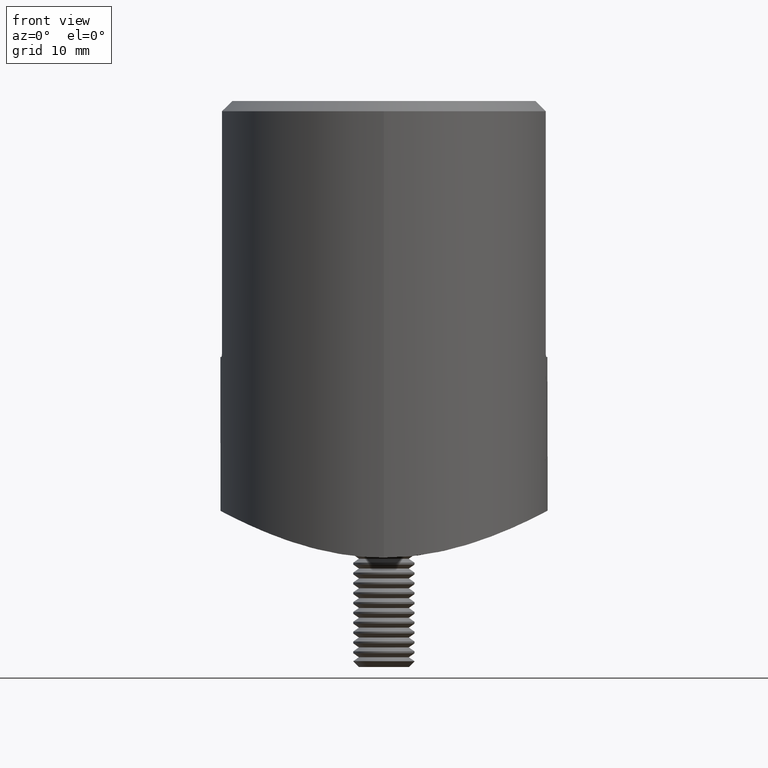
[diagram: clean part render]
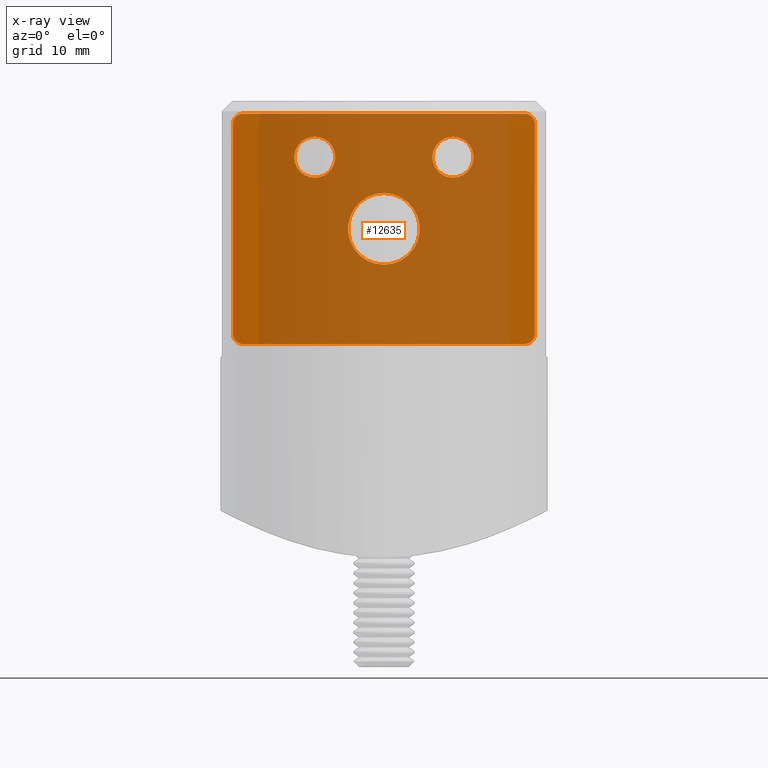
[diagram: x-ray — body ghosted, one internal face saturated and labeled with its STEP entity id]
A machine part, front view, then the same camera in x-ray: the body is ghosted and one INTERNAL B-rep face — a face not visible from any outside direction — is saturated and labeled: STEP entity #12635.
In plain terms, the highlighted planar face has unit normal (0, 1, 0).
Its self-contained STEP definition (entity closure, byte-faithful):
#58 = EDGE_CURVE ( 'NONE', #9213, #4261, #6994, .T. ) ;
#97 = AXIS2_PLACEMENT_3D ( 'NONE', #13115, #17718, #2362 ) ;
#173 = EDGE_CURVE ( 'NONE', #17363, #2555, #2664, .T. ) ;
#462 = CARTESIAN_POINT ( 'NONE',  ( -14.75000000000000355, 1.000000000000000000, -11.24999999999999112 ) ) ;
#502 = VECTOR ( 'NONE', #5008, 1000.000000000000000 ) ;
#568 = CARTESIAN_POINT ( 'NONE',  ( -6.749999999999997335, 1.000000000000000000, 6.999999999999997335 ) ) ;
#649 = DIRECTION ( 'NONE',  ( 0.000000000000000000, 0.000000000000000000, -1.000000000000000000 ) ) ;
#1084 = ORIENTED_EDGE ( 'NONE', *, *, #10057, .T. ) ;
#1249 = CARTESIAN_POINT ( 'NONE',  ( -14.75000000000000000, 1.000000000000000000, 11.24999999999999822 ) ) ;
#1281 = CARTESIAN_POINT ( 'NONE',  ( 13.74999999999999467, 1.000000000000000000, -11.25000000000000178 ) ) ;
#1301 = DIRECTION ( 'NONE',  ( 0.000000000000000000, 0.000000000000000000, -1.000000000000000000 ) ) ;
#1364 = EDGE_CURVE ( 'NONE', #12196, #12196, #3372, .T. ) ;
#1381 = DIRECTION ( 'NONE',  ( 1.000000000000000000, 0.000000000000000000, 0.000000000000000000 ) ) ;
#1461 = VECTOR ( 'NONE', #1381, 1000.000000000000000 ) ;
#1878 = ORIENTED_EDGE ( 'NONE', *, *, #3531, .T. ) ;
#1926 = LINE ( 'NONE', #1968, #13725 ) ;
#1968 = CARTESIAN_POINT ( 'NONE',  ( 14.75000000000000000, 1.000000000000000000, 11.24999999999999822 ) ) ;
#2011 = ORIENTED_EDGE ( 'NONE', *, *, #14354, .T. ) ;
#2150 = CARTESIAN_POINT ( 'NONE',  ( 6.750000000000002665, 1.000000000000000000, 4.999999999999995559 ) ) ;
#2362 = DIRECTION ( 'NONE',  ( 0.000000000000000000, 0.000000000000000000, -1.000000000000000000 ) ) ;
#2555 = VERTEX_POINT ( 'NONE', #1281 ) ;
#2664 = CIRCLE ( 'NONE', #6548, 1.000000000000000888 ) ;
#2741 = PLANE ( 'NONE',  #16877 ) ;
#2873 = CARTESIAN_POINT ( 'NONE',  ( 0.000000000000000000, 1.000000000000000000, 0.000000000000000000 ) ) ;
#2920 = AXIS2_PLACEMENT_3D ( 'NONE', #5612, #11599, #5544 ) ;
#2968 = EDGE_CURVE ( 'NONE', #5210, #5210, #5253, .T. ) ;
#3330 = DIRECTION ( 'NONE',  ( -1.541976423090495387E-16, 0.000000000000000000, -1.000000000000000000 ) ) ;
#3372 = CIRCLE ( 'NONE', #10950, 2.000000000000000000 ) ;
#3531 = EDGE_CURVE ( 'NONE', #16476, #15956, #5869, .T. ) ;
#3661 = CIRCLE ( 'NONE', #4454, 3.499999999999999556 ) ;
#3673 = DIRECTION ( 'NONE',  ( 0.000000000000000000, 0.000000000000000000, -1.000000000000000000 ) ) ;
#3682 = CARTESIAN_POINT ( 'NONE',  ( 13.74999999999999467, 1.000000000000000000, -10.25000000000000178 ) ) ;
#3782 = ORIENTED_EDGE ( 'NONE', *, *, #11475, .T. ) ;
#4261 = VERTEX_POINT ( 'NONE', #18863 ) ;
#4454 = AXIS2_PLACEMENT_3D ( 'NONE', #14443, #17542, #12743 ) ;
#4859 = CIRCLE ( 'NONE', #97, 0.9999999999999991118 ) ;
#4890 = VERTEX_POINT ( 'NONE', #10719 ) ;
#5008 = DIRECTION ( 'NONE',  ( -1.000000000000000000, -0.000000000000000000, 3.528251137579946599E-16 ) ) ;
#5160 = VECTOR ( 'NONE', #6533, 1000.000000000000000 ) ;
#5210 = VERTEX_POINT ( 'NONE', #2150 ) ;
#5253 = CIRCLE ( 'NONE', #5747, 2.000000000000000000 ) ;
#5312 = EDGE_LOOP ( 'NONE', ( #10636 ) ) ;
#5400 = CIRCLE ( 'NONE', #16229, 1.000000000000000888 ) ;
#5434 = DIRECTION ( 'NONE',  ( -0.000000000000000000, 1.000000000000000000, 0.000000000000000000 ) ) ;
#5488 = DIRECTION ( 'NONE',  ( -1.734723475976805517E-15, 0.000000000000000000, -1.000000000000000000 ) ) ;
#5498 = CARTESIAN_POINT ( 'NONE',  ( -14.75000000000000355, 1.000000000000000000, -10.24999999999998579 ) ) ;
#5544 = DIRECTION ( 'NONE',  ( 0.000000000000000000, 0.000000000000000000, -1.000000000000000000 ) ) ;
#5612 = CARTESIAN_POINT ( 'NONE',  ( 13.74999999999999822, 1.000000000000000000, 10.24999999999999822 ) ) ;
#5747 = AXIS2_PLACEMENT_3D ( 'NONE', #15962, #5434, #649 ) ;
#5758 = CARTESIAN_POINT ( 'NONE',  ( 14.74999999999999645, 1.000000000000000000, -10.24999999999999289 ) ) ;
#5869 = LINE ( 'NONE', #8011, #5160 ) ;
#6533 = DIRECTION ( 'NONE',  ( 1.541976423090496126E-16, -0.000000000000000000, 1.000000000000000000 ) ) ;
#6548 = AXIS2_PLACEMENT_3D ( 'NONE', #3682, #9995, #5488 ) ;
#6932 = CIRCLE ( 'NONE', #2920, 1.000000000000000888 ) ;
#6994 = LINE ( 'NONE', #1249, #1461 ) ;
#7042 = CARTESIAN_POINT ( 'NONE',  ( 0.000000000000000000, 1.000000000000000000, 3.499999999999999556 ) ) ;
#7463 = CARTESIAN_POINT ( 'NONE',  ( -13.74999999999999822, 1.000000000000000000, 11.24999999999999822 ) ) ;
#7584 = EDGE_CURVE ( 'NONE', #18718, #18718, #3661, .T. ) ;
#8011 = CARTESIAN_POINT ( 'NONE',  ( -14.75000000000000000, 1.000000000000000000, 11.24999999999999822 ) ) ;
#8181 = DIRECTION ( 'NONE',  ( -0.000000000000000000, 1.000000000000000000, 0.000000000000000000 ) ) ;
#8328 = ORIENTED_EDGE ( 'NONE', *, *, #7584, .F. ) ;
#9053 = ORIENTED_EDGE ( 'NONE', *, *, #2968, .F. ) ;
#9213 = VERTEX_POINT ( 'NONE', #7463 ) ;
#9940 = VERTEX_POINT ( 'NONE', #14309 ) ;
#9995 = DIRECTION ( 'NONE',  ( -0.000000000000000000, 1.000000000000000000, 0.000000000000000000 ) ) ;
#10057 = EDGE_CURVE ( 'NONE', #4261, #9940, #6932, .T. ) ;
#10516 = DIRECTION ( 'NONE',  ( -0.000000000000000000, 1.000000000000000000, 0.000000000000000000 ) ) ;
#10636 = ORIENTED_EDGE ( 'NONE', *, *, #1364, .F. ) ;
#10719 = CARTESIAN_POINT ( 'NONE',  ( -13.75000000000000178, 1.000000000000000000, -11.24999999999999112 ) ) ;
#10950 = AXIS2_PLACEMENT_3D ( 'NONE', #568, #8181, #3673 ) ;
#11378 = FACE_BOUND ( 'NONE', #14705, .T. ) ;
#11475 = EDGE_CURVE ( 'NONE', #15956, #9213, #5400, .T. ) ;
#11599 = DIRECTION ( 'NONE',  ( -0.000000000000000000, 1.000000000000000000, 0.000000000000000000 ) ) ;
#11685 = ORIENTED_EDGE ( 'NONE', *, *, #173, .T. ) ;
#11867 = FACE_BOUND ( 'NONE', #16959, .T. ) ;
#12196 = VERTEX_POINT ( 'NONE', #19054 ) ;
#12635 = ADVANCED_FACE ( 'NONE', ( #18636, #11378, #13306, #11867 ), #2741, .F. ) ;
#12743 = DIRECTION ( 'NONE',  ( 0.000000000000000000, 0.000000000000000000, 1.000000000000000000 ) ) ;
#13115 = CARTESIAN_POINT ( 'NONE',  ( -13.75000000000000178, 1.000000000000000000, -10.24999999999999289 ) ) ;
#13306 = FACE_BOUND ( 'NONE', #5312, .T. ) ;
#13634 = DIRECTION ( 'NONE',  ( 0.000000000000000000, -1.000000000000000000, 0.000000000000000000 ) ) ;
#13725 = VECTOR ( 'NONE', #3330, 1000.000000000000000 ) ;
#14245 = EDGE_LOOP ( 'NONE', ( #19075, #2011, #1878, #3782, #15151, #1084, #15231, #11685 ) ) ;
#14309 = CARTESIAN_POINT ( 'NONE',  ( 14.75000000000000000, 1.000000000000000000, 10.24999999999999822 ) ) ;
#14354 = EDGE_CURVE ( 'NONE', #4890, #16476, #4859, .T. ) ;
#14377 = EDGE_CURVE ( 'NONE', #2555, #4890, #16173, .T. ) ;
#14443 = CARTESIAN_POINT ( 'NONE',  ( 0.000000000000000000, 1.000000000000000000, 0.000000000000000000 ) ) ;
#14705 = EDGE_LOOP ( 'NONE', ( #8328 ) ) ;
#14830 = EDGE_CURVE ( 'NONE', #9940, #17363, #1926, .T. ) ;
#15151 = ORIENTED_EDGE ( 'NONE', *, *, #58, .T. ) ;
#15231 = ORIENTED_EDGE ( 'NONE', *, *, #14830, .T. ) ;
#15956 = VERTEX_POINT ( 'NONE', #19549 ) ;
#15962 = CARTESIAN_POINT ( 'NONE',  ( 6.750000000000002665, 1.000000000000000000, 6.999999999999995559 ) ) ;
#16173 = LINE ( 'NONE', #462, #502 ) ;
#16229 = AXIS2_PLACEMENT_3D ( 'NONE', #16669, #10516, #1301 ) ;
#16476 = VERTEX_POINT ( 'NONE', #5498 ) ;
#16669 = CARTESIAN_POINT ( 'NONE',  ( -13.74999999999999822, 1.000000000000000000, 10.24999999999999822 ) ) ;
#16753 = DIRECTION ( 'NONE',  ( 0.000000000000000000, 0.000000000000000000, -1.000000000000000000 ) ) ;
#16877 = AXIS2_PLACEMENT_3D ( 'NONE', #2873, #13634, #16753 ) ;
#16959 = EDGE_LOOP ( 'NONE', ( #9053 ) ) ;
#17363 = VERTEX_POINT ( 'NONE', #5758 ) ;
#17542 = DIRECTION ( 'NONE',  ( 0.000000000000000000, 1.000000000000000000, 0.000000000000000000 ) ) ;
#17718 = DIRECTION ( 'NONE',  ( -0.000000000000000000, 1.000000000000000000, 0.000000000000000000 ) ) ;
#18636 = FACE_OUTER_BOUND ( 'NONE', #14245, .T. ) ;
#18718 = VERTEX_POINT ( 'NONE', #7042 ) ;
#18863 = CARTESIAN_POINT ( 'NONE',  ( 13.74999999999999822, 1.000000000000000000, 11.24999999999999822 ) ) ;
#19054 = CARTESIAN_POINT ( 'NONE',  ( -6.749999999999997335, 1.000000000000000000, 4.999999999999997335 ) ) ;
#19075 = ORIENTED_EDGE ( 'NONE', *, *, #14377, .T. ) ;
#19549 = CARTESIAN_POINT ( 'NONE',  ( -14.75000000000000000, 1.000000000000000000, 10.24999999999999822 ) ) ;